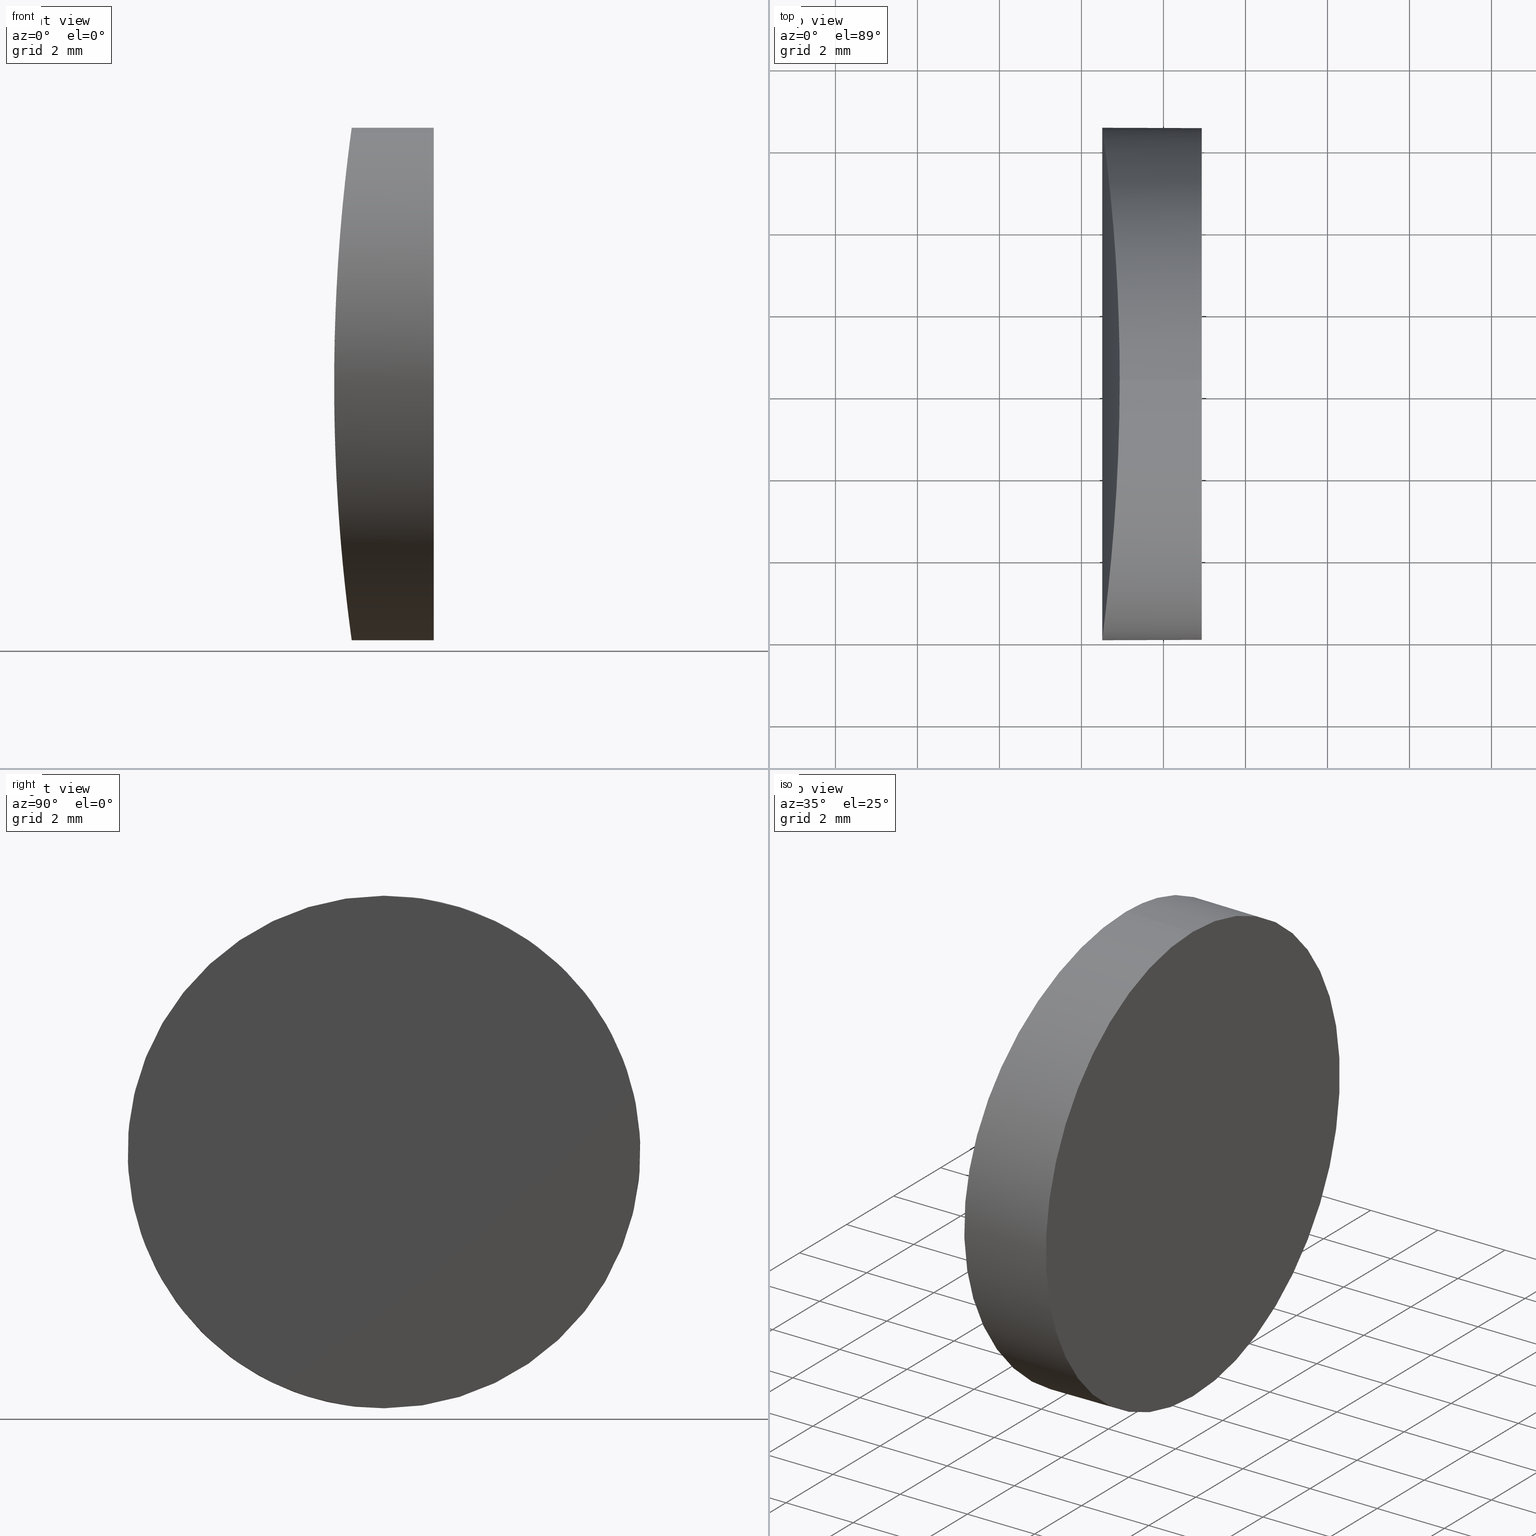
[diagram: canonical four-view strip — front | top / right | iso, engineering-drawing reading convention]
A machine part, canonical four-view strip (front | top / right | iso — engineering-drawing reading convention). The complete STEP part file that produces these views, byte-faithful:
ISO-10303-21;
HEADER;
FILE_DESCRIPTION (( 'STEP AP214' ),
    '1' );
FILE_NAME ('155278.STEP',
    '2019-06-25T07:41:05',
    ( 'user' ),
    ( '΢���й�' ),
    'SwSTEP 2.0',
    'SolidWorks 2016',
    '' );
FILE_SCHEMA (( 'AUTOMOTIVE_DESIGN' ));
ENDSEC;

DATA;
#1 = CARTESIAN_POINT ( 'NONE',  ( -41.17328954633750700, 3.119781856445477300, 5.425008738057455200 ) ) ;
#2 = SHAPE_DEFINITION_REPRESENTATION ( #169, #97 ) ;
#3 = CARTESIAN_POINT ( 'NONE',  ( -41.06681675624506800, 6.250000000000000900, 6.250000000000017800 ) ) ;
#4 = FACE_OUTER_BOUND ( 'NONE', #102, .T. ) ;
#5 = DIRECTION ( 'NONE',  ( 0.0000000000000000000, 0.0000000000000000000, -1.000000000000000000 ) ) ;
#6 = CARTESIAN_POINT ( 'NONE',  ( -41.14973033061349400, 3.478416230018543900, 5.616795434413566200 ) ) ;
#7 = CARTESIAN_POINT ( 'NONE',  ( -41.11988314615256000, 4.045633690512870500, 5.851936522222082700 ) ) ;
#8 =( NAMED_UNIT ( * ) PLANE_ANGLE_UNIT ( ) SI_UNIT ( $, .RADIAN. ) );
#9 = ORIENTED_EDGE ( 'NONE', *, *, #150, .F. ) ;
#10 = CARTESIAN_POINT ( 'NONE',  ( -41.11081442947651300, 4.240684651891777800, 5.921759922297695800 ) ) ;
#11 = CARTESIAN_POINT ( 'NONE',  ( -41.25329310211020600, 2.119973196380613400, 4.708607257818966800 ) ) ;
#12 = DIRECTION ( 'NONE',  ( 0.0000000000000000000, 0.0000000000000000000, -1.000000000000000000 ) ) ;
#13 =( GEOMETRIC_REPRESENTATION_CONTEXT ( 3 ) GLOBAL_UNCERTAINTY_ASSIGNED_CONTEXT ( ( #173 ) ) GLOBAL_UNIT_ASSIGNED_CONTEXT ( ( #103, #8, #211 ) ) REPRESENTATION_CONTEXT ( 'NONE', 'WORKASPACE' ) );
#14 = DIRECTION ( 'NONE',  ( 1.000000000000000000, -4.930380657631323800E-032, -4.995092817331918400E-016 ) ) ;
#15 = CARTESIAN_POINT ( 'NONE',  ( -41.22499357000813100, 10.05906227637915000, -4.971925080242098000 ) ) ;
#16 = EDGE_CURVE ( 'NONE', #128, #94, #34, .T. ) ;
#17 = CARTESIAN_POINT ( 'NONE',  ( 0.0000000000000000000, 0.0000000000000000000, 0.0000000000000000000 ) ) ;
#18 = COLOUR_RGB ( '',1.000000000000000000, 1.000000000000000000, 1.000000000000000000 ) ;
#19 = APPLICATION_PROTOCOL_DEFINITION ( 'draft international standard', 'automotive_design', 1998, #69 ) ;
#20 = CARTESIAN_POINT ( 'NONE',  ( -41.37565691265786000, 0.9429711394269317800, 3.307581169208322300 ) ) ;
#21 = ADVANCED_FACE ( 'NONE', ( #49 ), #176, .T. ) ;
#22 = CARTESIAN_POINT ( 'NONE',  ( -41.33672597451420900, 1.285724126520843000, 3.819300868407713900 ) ) ;
#23 = CARTESIAN_POINT ( 'NONE',  ( -51.76479566514873200, 6.250000000000000000, 2.000610547511701000E-014 ) ) ;
#24 = CARTESIAN_POINT ( 'NONE',  ( -41.30902500987434000, 1.544266838314014100, 4.133301237268924800 ) ) ;
#25 = SURFACE_STYLE_FILL_AREA ( #70 ) ;
#26 = AXIS2_PLACEMENT_3D ( 'NONE', #151, #14, #12 ) ;
#27 = CARTESIAN_POINT ( 'NONE',  ( -41.07245456210258500, 5.428291536823493000, -6.209424263702912200 ) ) ;
#28 = DIRECTION ( 'NONE',  ( 1.000000000000000000, 0.0000000000000000000, -5.551115123125781700E-016 ) ) ;
#29 = CARTESIAN_POINT ( 'NONE',  ( -41.11081663263124100, 8.259365666320418200, -5.921743038425168100 ) ) ;
#30 = PLANE ( 'NONE',  #143 ) ;
#31 = UNCERTAINTY_MEASURE_WITH_UNIT (LENGTH_MEASURE( 1.000000000000000100E-005 ), #82, 'distance_accuracy_value', 'NONE');
#32 = ADVANCED_FACE ( 'NONE', ( #4 ), #47, .T. ) ;
#33 = DIRECTION ( 'NONE',  ( 1.000000000000000000, -0.0000000000000000000, -2.775557561562888400E-016 ) ) ;
#34 = LINE ( 'NONE', #165, #56 ) ;
#35 = CARTESIAN_POINT ( 'NONE',  ( -41.06681675624508900, 6.663179863754944400, 6.250000000000021300 ) ) ;
#36 = ORIENTED_EDGE ( 'NONE', *, *, #16, .F. ) ;
#37 = DIRECTION ( 'NONE',  ( 1.000000000000000000, -0.0000000000000000000, -2.775557561562888400E-016 ) ) ;
#38 = DIRECTION ( 'NONE',  ( -5.551115123125781700E-016, 0.0000000000000000000, -1.000000000000000000 ) ) ;
#39 = AXIS2_PLACEMENT_3D ( 'NONE', #44, #137, #5 ) ;
#40 = CARTESIAN_POINT ( 'NONE',  ( -41.06681675624507500, 6.250000000000000000, -6.249999999999983100 ) ) ;
#41 = CARTESIAN_POINT ( 'NONE',  ( -41.06681675624507500, 6.250000000000000000, -6.249999999999983100 ) ) ;
#42 = CARTESIAN_POINT ( 'NONE',  ( -41.08852602901865200, 7.668626036323454200, -6.090277235686743400 ) ) ;
#43 = CARTESIAN_POINT ( 'NONE',  ( -41.06681675624507500, 6.663190509304100400, -6.249999999999983100 ) ) ;
#44 = CARTESIAN_POINT ( 'NONE',  ( 4.355204334851265500, 12.50000000000000000, 4.286263797015675000E-017 ) ) ;
#45 = CARTESIAN_POINT ( 'NONE',  ( -41.45116402383524700, 12.17172811826398500, 2.009409587022609000 ) ) ;
#46 = ORIENTED_EDGE ( 'NONE', *, *, #129, .F. ) ;
#47 = CYLINDRICAL_SURFACE ( 'NONE', #108, 6.250000000000000000 ) ;
#48 = DIRECTION ( 'NONE',  ( 0.0000000000000000000, 0.0000000000000000000, -1.000000000000000000 ) ) ;
#49 = FACE_OUTER_BOUND ( 'NONE', #131, .T. ) ;
#50 = CARTESIAN_POINT ( 'NONE',  ( -41.46761465878393700, 12.29790433257042200, -1.629418334145542800 ) ) ;
#51 = FILL_AREA_STYLE ('',( #184 ) ) ;
#52 = CARTESIAN_POINT ( 'NONE',  ( -41.33673578837979800, 11.21436611099373000, -3.819184876680472600 ) ) ;
#53 = CARTESIAN_POINT ( 'NONE',  ( -41.30903430878590400, 10.95582347346018900, -4.133199404818453700 ) ) ;
#54 = CLOSED_SHELL ( 'NONE', ( #32, #21, #213, #109 ) ) ;
#55 = PRODUCT_DEFINITION_CONTEXT ( 'detailed design', #210, 'design' ) ;
#56 = VECTOR ( 'NONE', #57, 1000.000000000000000 ) ;
#57 = DIRECTION ( 'NONE',  ( 1.000000000000000000, -0.0000000000000000000, -2.775557561562888400E-016 ) ) ;
#58 = CARTESIAN_POINT ( 'NONE',  ( -41.25357894503633800, 10.38316913101755500, 4.705849741790089500 ) ) ;
#59 = AXIS2_PLACEMENT_3D ( 'NONE', #134, #64, #142 ) ;
#60 = CYLINDRICAL_SURFACE ( 'NONE', #117, 6.250000000000000000 ) ;
#61 = CARTESIAN_POINT ( 'NONE',  ( -41.38816628897198100, 11.66342012530651200, -3.130351732321286400 ) ) ;
#62 =( LENGTH_UNIT ( ) NAMED_UNIT ( * ) SI_UNIT ( .MILLI., .METRE. ) );
#63 = CARTESIAN_POINT ( 'NONE',  ( -41.15085969396229600, 9.020225370282384200, 5.606252626567207500 ) ) ;
#64 = DIRECTION ( 'NONE',  ( 1.000000000000000000, -4.930380657631323800E-032, -4.995092817331918400E-016 ) ) ;
#65 = ORIENTED_EDGE ( 'NONE', *, *, #96, .T. ) ;
#66 = CARTESIAN_POINT ( 'NONE',  ( -41.25330103421742900, 10.38011448517963200, -4.708531217128102000 ) ) ;
#67 = CARTESIAN_POINT ( 'NONE',  ( -41.06681675624506800, 6.250000000000000900, 6.250000000000017800 ) ) ;
#68 = CARTESIAN_POINT ( 'NONE',  ( -41.07245140966598000, 7.069382834614735600, -6.209429790582635000 ) ) ;
#69 = APPLICATION_CONTEXT ( 'automotive_design' ) ;
#70 = FILL_AREA_STYLE ('',( #74 ) ) ;
#71 = CARTESIAN_POINT ( 'NONE',  ( -41.11988577695934300, 8.454420909930078700, -5.851916130544093900 ) ) ;
#72 = PRESENTATION_LAYER_ASSIGNMENT (  '', '', ( #90 ) ) ;
#73 = CARTESIAN_POINT ( 'NONE',  ( -41.14973429715334400, 9.021649939272878200, -5.616763516685184100 ) ) ;
#74 = FILL_AREA_STYLE_COLOUR ( '', #207 ) ;
#75 = PRESENTATION_STYLE_ASSIGNMENT (( #86 ) ) ;
#76 = DIRECTION ( 'NONE',  ( 1.000000000000000000, 0.0000000000000000000, 0.0000000000000000000 ) ) ;
#77 = CARTESIAN_POINT ( 'NONE',  ( -51.76479566514873200, 6.250000000000000000, 2.000610547511701000E-014 ) ) ;
#78 = CARTESIAN_POINT ( 'NONE',  ( -41.07245427154693800, 7.071687410407112600, 6.209426334144164400 ) ) ;
#79 = ORIENTED_EDGE ( 'NONE', *, *, #96, .F. ) ;
#80 =( NAMED_UNIT ( * ) SI_UNIT ( $, .STERADIAN. ) SOLID_ANGLE_UNIT ( ) );
#81 = CIRCLE ( 'NONE', #26, 6.250000000000000000 ) ;
#82 =( LENGTH_UNIT ( ) NAMED_UNIT ( * ) SI_UNIT ( .MILLI., .METRE. ) );
#83 = STYLED_ITEM ( 'NONE', ( #75 ), #97 ) ;
#84 =( NAMED_UNIT ( * ) PLANE_ANGLE_UNIT ( ) SI_UNIT ( $, .RADIAN. ) );
#85 = SURFACE_SIDE_STYLE ('',( #25 ) ) ;
#86 = SURFACE_STYLE_USAGE ( .BOTH. , #85 ) ;
#87 = CARTESIAN_POINT ( 'NONE',  ( -41.30931137215477400, 10.95849971320400100, 4.130150034642825000 ) ) ;
#88 = DIRECTION ( 'NONE',  ( 0.0000000000000000000, 0.0000000000000000000, 1.000000000000000000 ) ) ;
#89 = SURFACE_SIDE_STYLE ('',( #99 ) ) ;
#90 = STYLED_ITEM ( 'NONE', ( #123 ), #120 ) ;
#91 = CARTESIAN_POINT ( 'NONE',  ( -41.41250922536045900, 11.86674203928821000, 2.771693640280447300 ) ) ;
#92 = CARTESIAN_POINT ( 'NONE',  ( -41.46670400098361100, 12.29075866366265600, 1.616732990459850900 ) ) ;
#93 = EDGE_LOOP ( 'NONE', ( #183, #105, #197, #79 ) ) ;
#94 = VERTEX_POINT ( 'NONE', #154 ) ;
#95 = APPLICATION_PROTOCOL_DEFINITION ( 'draft international standard', 'automotive_design', 1998, #210 ) ;
#96 = EDGE_CURVE ( 'NONE', #107, #94, #191, .T. ) ;
#97 = ADVANCED_BREP_SHAPE_REPRESENTATION ( '155278', ( #120, #199 ), #130 ) ;
#98 = CARTESIAN_POINT ( 'NONE',  ( -41.49479622950158100, 12.50000414009248900, -0.4131212303580421600 ) ) ;
#99 = SURFACE_STYLE_FILL_AREA ( #51 ) ;
#100 = PRODUCT_CONTEXT ( 'NONE', #69, 'mechanical' ) ;
#101 = ORIENTED_EDGE ( 'NONE', *, *, #150, .T. ) ;
#102 = EDGE_LOOP ( 'NONE', ( #118, #163, #9, #36 ) ) ;
#103 =( LENGTH_UNIT ( ) NAMED_UNIT ( * ) SI_UNIT ( .MILLI., .METRE. ) );
#104 = FACE_OUTER_BOUND ( 'NONE', #93, .T. ) ;
#105 = ORIENTED_EDGE ( 'NONE', *, *, #132, .T. ) ;
#106 = CARTESIAN_POINT ( 'NONE',  ( -41.48921363090644800, 12.45943354192297800, -0.8216361798360506400 ) ) ;
#107 = VERTEX_POINT ( 'NONE', #178 ) ;
#108 = AXIS2_PLACEMENT_3D ( 'NONE', #77, #126, #144 ) ;
#109 = ADVANCED_FACE ( 'NONE', ( #104 ), #60, .T. ) ;
#110 = CARTESIAN_POINT ( 'NONE',  ( -41.17420122190231500, 9.380344319562960100, 5.413424198788392000 ) ) ;
#111 = LINE ( 'NONE', #212, #122 ) ;
#112 = CARTESIAN_POINT ( 'NONE',  ( -41.09424145064288300, 7.879455721867611100, 6.047893819343846300 ) ) ;
#113 = MECHANICAL_DESIGN_GEOMETRIC_PRESENTATION_REPRESENTATION (  '', ( #90 ), #13 ) ;
#114 = PRODUCT ( '155278', '155278', '', ( #100 ) ) ;
#115 = CARTESIAN_POINT ( 'NONE',  ( -41.22583234584809700, 2.430757277562535000, -4.964321416886342300 ) ) ;
#116 = ORIENTED_EDGE ( 'NONE', *, *, #132, .F. ) ;
#117 = AXIS2_PLACEMENT_3D ( 'NONE', #23, #37, #48 ) ;
#118 = ORIENTED_EDGE ( 'NONE', *, *, #129, .T. ) ;
#119 = EDGE_LOOP ( 'NONE', ( #101, #65 ) ) ;
#120 = MANIFOLD_SOLID_BREP ( '�г�-����8', #54 ) ;
#121 = CARTESIAN_POINT ( 'NONE',  ( -41.22582536954887200, 10.06915906212236000, 4.964384979160539200 ) ) ;
#122 = VECTOR ( 'NONE', #33, 1000.000000000000000 ) ;
#123 = PRESENTATION_STYLE_ASSIGNMENT (( #181 ) ) ;
#124 = CARTESIAN_POINT ( 'NONE',  ( -41.44216112207622200, 12.10189964429964400, 2.204464730023007100 ) ) ;
#125 = B_SPLINE_CURVE_WITH_KNOTS ( 'NONE', 3,
 ( #215, #140, #133, #136, #202, #10, #7, #6, #1, #204, #11, #24, #22, #20, #195, #198, #177, #194, #138, #162, #161, #160, #159, #158, #157, #156, #155, #152, #148, #147, #141, #139, #115, #187, #172, #174, #164, #167, #171, #27, #145, #149 ),
 .UNSPECIFIED., .F., .F.,
 ( 4, 2, 2, 2, 2, 2, 2, 2, 2, 2, 2, 2, 2, 2, 2, 2, 2, 2, 2, 2, 4 ),
 ( 0.009774868455374476800, 0.01099671929560332500, 0.01160764471571775100, 0.01221857013583217700, 0.01344042097606102500, 0.01466227181628987400, 0.01588412265651872200, 0.01649504807663314600, 0.01710597349674757000, 0.01832782433697641800, 0.01954967517720527000, 0.02077152601743412200, 0.02138245143754854600, 0.02199337685766297000, 0.02321522769789181900, 0.02443707853812066700, 0.02565892937834951500, 0.02626985479846394000, 0.02688078021857836400, 0.02810263105880721200, 0.02932448189903606000 ),
 .UNSPECIFIED. ) ;
#126 = DIRECTION ( 'NONE',  ( 1.000000000000000000, -0.0000000000000000000, -2.775557561562888400E-016 ) ) ;
#127 = CARTESIAN_POINT ( 'NONE',  ( -41.33756425528962100, 11.22189609490642100, 3.809099987312586100 ) ) ;
#128 = VERTEX_POINT ( 'NONE', #41 ) ;
#129 = EDGE_CURVE ( 'NONE', #128, #135, #168, .T. ) ;
#130 =( GEOMETRIC_REPRESENTATION_CONTEXT ( 3 ) GLOBAL_UNCERTAINTY_ASSIGNED_CONTEXT ( ( #196 ) ) GLOBAL_UNIT_ASSIGNED_CONTEXT ( ( #62, #188, #201 ) ) REPRESENTATION_CONTEXT ( 'NONE', 'WORKASPACE' ) );
#131 = EDGE_LOOP ( 'NONE', ( #46, #116 ) ) ;
#132 = EDGE_CURVE ( 'NONE', #135, #128, #125, .T. ) ;
#133 = CARTESIAN_POINT ( 'NONE',  ( -41.07245111940910900, 5.430638099128605000, 6.209431861094479600 ) ) ;
#134 = CARTESIAN_POINT ( 'NONE',  ( -39.06479566514873600, 6.250000000000000000, 1.648114737193214100E-014 ) ) ;
#135 = VERTEX_POINT ( 'NONE', #3 ) ;
#136 = CARTESIAN_POINT ( 'NONE',  ( -41.08852493171823300, 4.831409813700188000, 6.090285409886612400 ) ) ;
#137 = DIRECTION ( 'NONE',  ( -0.0000000000000000000, -1.000000000000000000, -0.0000000000000000000 ) ) ;
#138 = CARTESIAN_POINT ( 'NONE',  ( -41.46760721153794500, 0.2021519279529209700, 1.629624767985335500 ) ) ;
#139 = CARTESIAN_POINT ( 'NONE',  ( -41.25358681865915900, 2.116743856714391500, -4.705774261886705100 ) ) ;
#140 = CARTESIAN_POINT ( 'NONE',  ( -41.06681675624506100, 5.836820136175158600, 6.250000000000016000 ) ) ;
#141 = CARTESIAN_POINT ( 'NONE',  ( -41.30932072995574300, 1.541409419383953800, -4.130047517157335000 ) ) ;
#142 = DIRECTION ( 'NONE',  ( 0.0000000000000000000, 0.0000000000000000000, -1.000000000000000000 ) ) ;
#143 = AXIS2_PLACEMENT_3D ( 'NONE', #214, #28, #38 ) ;
#144 = DIRECTION ( 'NONE',  ( 0.0000000000000000000, 0.0000000000000000000, -1.000000000000000000 ) ) ;
#145 = CARTESIAN_POINT ( 'NONE',  ( -41.06681675624506100, 5.836809490625995500, -6.249999999999984000 ) ) ;
#146 = CARTESIAN_POINT ( 'NONE',  ( -41.48921445853778100, 12.45942283775080000, 0.8194342987540556000 ) ) ;
#147 = CARTESIAN_POINT ( 'NONE',  ( -41.33757414503769200, 1.278013163082426700, -3.808982577111306200 ) ) ;
#148 = CARTESIAN_POINT ( 'NONE',  ( -41.38908785844074600, 0.8249731650843119500, -3.130189326488703300 ) ) ;
#149 = CARTESIAN_POINT ( 'NONE',  ( -41.06681675624507500, 6.250000000000000000, -6.249999999999983100 ) ) ;
#150 = EDGE_CURVE ( 'NONE', #94, #107, #81, .T. ) ;
#151 = CARTESIAN_POINT ( 'NONE',  ( -39.06479566514873600, 6.250000000000000000, 1.648114737193214100E-014 ) ) ;
#152 = CARTESIAN_POINT ( 'NONE',  ( -41.41251901760183800, 0.6331783600277606200, -2.771534096792517500 ) ) ;
#153 = CARTESIAN_POINT ( 'NONE',  ( -41.38907783963325200, 11.67494248865745700, 3.130334245196427600 ) ) ;
#154 = CARTESIAN_POINT ( 'NONE',  ( -39.06479566514873600, 6.250000000000000000, -6.249999999999984000 ) ) ;
#155 = CARTESIAN_POINT ( 'NONE',  ( -41.44216997727273400, 0.3980311003952188300, -2.204281434911238100 ) ) ;
#156 = CARTESIAN_POINT ( 'NONE',  ( -41.45117243190693300, 0.3282068944390260600, -2.009218513014186000 ) ) ;
#157 = CARTESIAN_POINT ( 'NONE',  ( -41.46671120727842900, 0.2091867238814731400, -1.616529486640619700 ) ) ;
#158 = CARTESIAN_POINT ( 'NONE',  ( -41.47328452956738000, 0.1596846968409759700, -1.418463149756753900 ) ) ;
#159 = CARTESIAN_POINT ( 'NONE',  ( -41.48921865969593600, 0.04054629730082838500, -0.8192054140928735100 ) ) ;
#160 = CARTESIAN_POINT ( 'NONE',  ( -41.49479740266127700, -1.274639199952053000E-005, -0.4129796031264547100 ) ) ;
#161 = CARTESIAN_POINT ( 'NONE',  ( -41.49479392682499000, 1.275234306456228500E-005, 0.4133653188000435100 ) ) ;
#162 = CARTESIAN_POINT ( 'NONE',  ( -41.48920939109712700, 0.04059760020428820900, 0.8218667923733482500 ) ) ;
#163 = ORIENTED_EDGE ( 'NONE', *, *, #182, .T. ) ;
#164 = CARTESIAN_POINT ( 'NONE',  ( -41.14000392530971300, 3.663661794753142200, -5.693392205679921300 ) ) ;
#165 = CARTESIAN_POINT ( 'NONE',  ( -51.76479566514873200, 6.250000000000000000, -6.249999999999980500 ) ) ;
#166 = CARTESIAN_POINT ( 'NONE',  ( -41.18675612642481100, 9.557429426840313300, 5.307123432448829400 ) ) ;
#167 = CARTESIAN_POINT ( 'NONE',  ( -41.11029466451233800, 4.227061056991617600, -5.927533931689160000 ) ) ;
#168 = B_SPLINE_CURVE_WITH_KNOTS ( 'NONE', 3,
 ( #40, #43, #68, #42, #209, #29, #71, #73, #175, #15, #66, #53, #52, #185, #61, #203, #179, #180, #50, #106, #98, #200, #146, #206, #92, #45, #124, #91, #153, #127, #87, #58, #121, #166, #110, #63, #189, #192, #112, #78, #35, #67 ),
 .UNSPECIFIED., .F., .F.,
 ( 4, 2, 2, 2, 2, 2, 2, 2, 2, 2, 2, 2, 2, 2, 2, 2, 2, 2, 2, 2, 4 ),
 ( -0.009774744984979594600, -0.008552894144957464600, -0.007941968724946397000, -0.007331043304935331100, -0.006109192464913199400, -0.004887341624891066800, -0.003665490784868935000, -0.003054565364857870000, -0.002443639944846805900, -0.001221789104824679400, 6.173519744891165000E-008, 0.001221912575219575400, 0.001832837995230641300, 0.002443763415241703700, 0.003665614255263833700, 0.004887465095285965400, 0.006109315935308093700, 0.006720241355319159600, 0.007331166775330222000, 0.008553017615352346800, 0.009774868455374478500 ),
 .UNSPECIFIED. ) ;
#169 = PRODUCT_DEFINITION_SHAPE ( 'NONE', 'NONE',  #216 ) ;
#170 = FACE_OUTER_BOUND ( 'NONE', #119, .T. ) ;
#171 = CARTESIAN_POINT ( 'NONE',  ( -41.09424284415445800, 4.620502894234890700, -6.047883403920869800 ) ) ;
#172 = CARTESIAN_POINT ( 'NONE',  ( -41.17420624212640900, 3.119582457293926100, -5.413382064091473800 ) ) ;
#173 = UNCERTAINTY_MEASURE_WITH_UNIT (LENGTH_MEASURE( 1.000000000000000100E-005 ), #103, 'distance_accuracy_value', 'NONE');
#174 = CARTESIAN_POINT ( 'NONE',  ( -41.15086369476979700, 3.479708675756788800, -5.606220236695307300 ) ) ;
#175 = CARTESIAN_POINT ( 'NONE',  ( -41.17329452023935900, 9.380291101027673100, -5.424967470105425300 ) ) ;
#176 = CYLINDRICAL_SURFACE ( 'NONE', #39, 45.85000000000000100 ) ;
#177 = CARTESIAN_POINT ( 'NONE',  ( -41.42217234651007400, 0.5566520700841803800, 2.586435292868075400 ) ) ;
#178 = CARTESIAN_POINT ( 'NONE',  ( -39.06479566514873600, 6.250000000000000900, 6.250000000000016900 ) ) ;
#179 = CARTESIAN_POINT ( 'NONE',  ( -41.42218180923131100, 11.94342396506250000, -2.586268329688635500 ) ) ;
#180 = CARTESIAN_POINT ( 'NONE',  ( -41.45169451416748500, 12.17755929622433600, -2.022864816575355100 ) ) ;
#181 = SURFACE_STYLE_USAGE ( .BOTH. , #89 ) ;
#182 = EDGE_CURVE ( 'NONE', #135, #107, #111, .T. ) ;
#183 = ORIENTED_EDGE ( 'NONE', *, *, #182, .F. ) ;
#184 = FILL_AREA_STYLE_COLOUR ( '', #18 ) ;
#185 = CARTESIAN_POINT ( 'NONE',  ( -41.37566705128707400, 11.55711620376724500, -3.307441398010427600 ) ) ;
#186 = MECHANICAL_DESIGN_GEOMETRIC_PRESENTATION_REPRESENTATION (  '', ( #83 ), #190 ) ;
#187 = CARTESIAN_POINT ( 'NONE',  ( -41.18676169792672700, 2.942493741183280300, -5.307075736566240200 ) ) ;
#188 =( NAMED_UNIT ( * ) PLANE_ANGLE_UNIT ( ) SI_UNIT ( $, .RADIAN. ) );
#189 = CARTESIAN_POINT ( 'NONE',  ( -41.14000041127441400, 8.836276098663489600, 5.693420231645526500 ) ) ;
#190 =( GEOMETRIC_REPRESENTATION_CONTEXT ( 3 ) GLOBAL_UNCERTAINTY_ASSIGNED_CONTEXT ( ( #31 ) ) GLOBAL_UNIT_ASSIGNED_CONTEXT ( ( #82, #84, #80 ) ) REPRESENTATION_CONTEXT ( 'NONE', 'WORKASPACE' ) );
#191 = CIRCLE ( 'NONE', #59, 6.250000000000000000 ) ;
#192 = CARTESIAN_POINT ( 'NONE',  ( -41.11029250736736900, 8.272888967858197200, 5.927550269228549800 ) ) ;
#193 = PRESENTATION_LAYER_ASSIGNMENT (  '', '', ( #83 ) ) ;
#194 = CARTESIAN_POINT ( 'NONE',  ( -41.45168606553493600, 0.3225058036024933100, 2.023053447824555700 ) ) ;
#195 = CARTESIAN_POINT ( 'NONE',  ( -41.38815625397827300, 0.8366646220050696400, 3.130497975397670700 ) ) ;
#196 = UNCERTAINTY_MEASURE_WITH_UNIT (LENGTH_MEASURE( 1.000000000000000100E-005 ), #62, 'distance_accuracy_value', 'NONE');
#197 = ORIENTED_EDGE ( 'NONE', *, *, #16, .T. ) ;
#198 = CARTESIAN_POINT ( 'NONE',  ( -41.41137773494129700, 0.6438251627311297700, 2.770382858486128500 ) ) ;
#199 = AXIS2_PLACEMENT_3D ( 'NONE', #17, #88, #76 ) ;
#200 = CARTESIAN_POINT ( 'NONE',  ( -41.49479510071033400, 12.49999585927991700, 0.4132464895552285200 ) ) ;
#201 =( NAMED_UNIT ( * ) SI_UNIT ( $, .STERADIAN. ) SOLID_ANGLE_UNIT ( ) );
#202 = CARTESIAN_POINT ( 'NONE',  ( -41.09515386023603900, 4.633353485861514200, 6.040781637652397500 ) ) ;
#203 = CARTESIAN_POINT ( 'NONE',  ( -41.41138744331713200, 11.85625404473695000, -2.770222916480007400 ) ) ;
#204 = CARTESIAN_POINT ( 'NONE',  ( -41.22498655617931700, 2.441022158165861500, 4.971988861075030500 ) ) ;
#205 = PRODUCT_DEFINITION_FORMATION_WITH_SPECIFIED_SOURCE ( '�κ�', '', #114, .NOT_KNOWN. ) ;
#206 = CARTESIAN_POINT ( 'NONE',  ( -41.47327800819742500, 12.34026626968884500, 1.418672936683907900 ) ) ;
#207 = COLOUR_RGB ( '',1.000000000000000000, 1.000000000000000000, 1.000000000000000000 ) ;
#208 = PRODUCT_RELATED_PRODUCT_CATEGORY ( 'part', '', ( #114 ) ) ;
#209 = CARTESIAN_POINT ( 'NONE',  ( -41.09515528854139200, 7.866687249022193700, -6.040770922073877900 ) ) ;
#210 = APPLICATION_CONTEXT ( 'automotive_design' ) ;
#211 =( NAMED_UNIT ( * ) SI_UNIT ( $, .STERADIAN. ) SOLID_ANGLE_UNIT ( ) );
#212 = CARTESIAN_POINT ( 'NONE',  ( -51.76479566514873200, 6.250000000000000900, 6.250000000000020400 ) ) ;
#213 = ADVANCED_FACE ( 'NONE', ( #170 ), #30, .T. ) ;
#214 = CARTESIAN_POINT ( 'NONE',  ( -39.06479566514874300, 12.50000000000000000, -6.250000000000001800 ) ) ;
#215 = CARTESIAN_POINT ( 'NONE',  ( -41.06681675624506800, 6.250000000000000900, 6.250000000000017800 ) ) ;
#216 = PRODUCT_DEFINITION ( 'δ֪', '', #205, #55 ) ;
ENDSEC;
END-ISO-10303-21;
